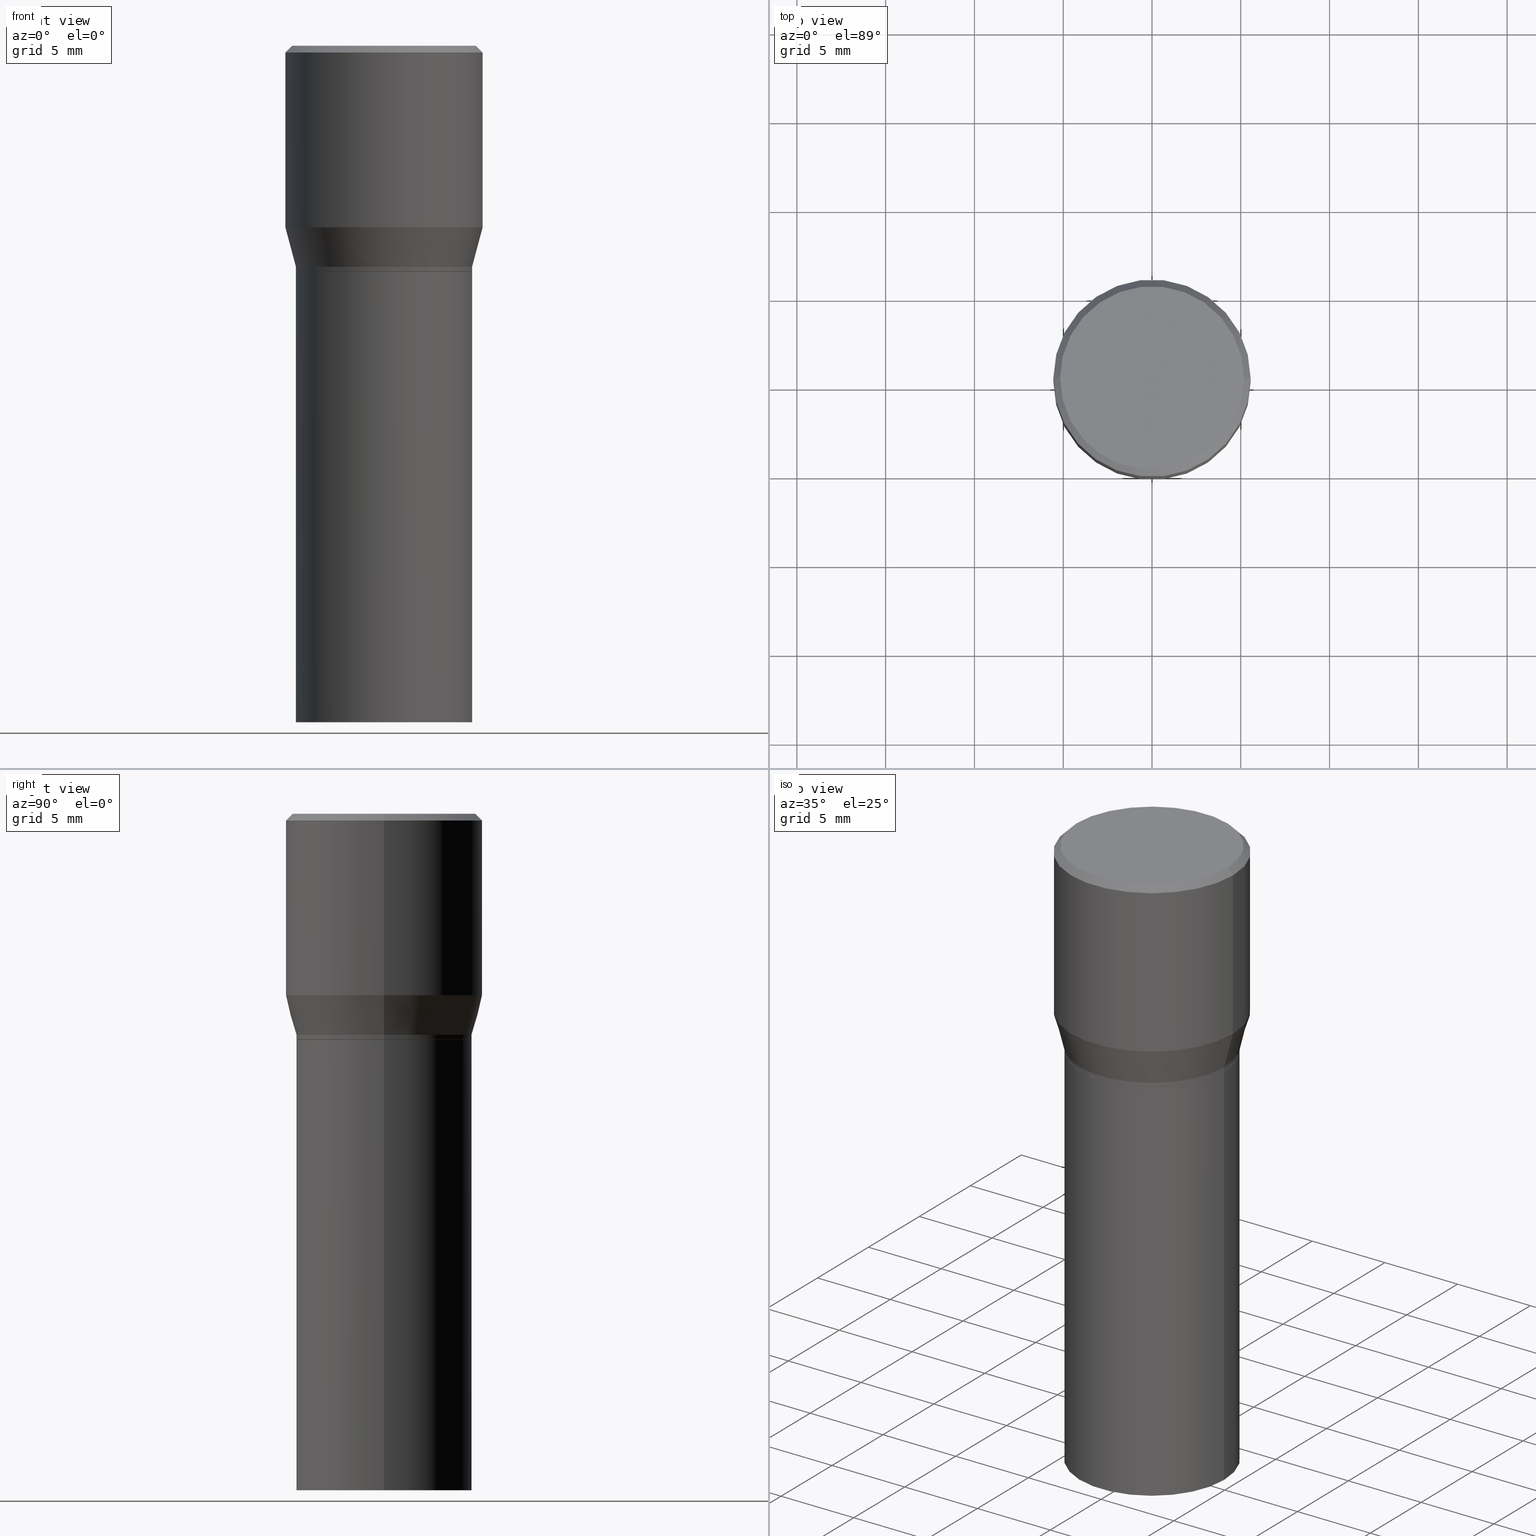
[diagram: canonical four-view strip — front | top / right | iso, engineering-drawing reading convention]
A machine part, canonical four-view strip (front | top / right | iso — engineering-drawing reading convention). The complete STEP part file that produces these views, byte-faithful:
ISO-10303-21;
HEADER;
FILE_DESCRIPTION (( 'STEP AP203' ),
    '1' );
FILE_NAME ('39349.STEP',
    '2024-03-12T18:59:48',
    ( '' ),
    ( '' ),
    'SwSTEP 2.0',
    'SolidWorks 2023',
    '' );
FILE_SCHEMA (( 'CONFIG_CONTROL_DESIGN' ));
ENDSEC;

DATA;
#1 = PERSON_AND_ORGANIZATION_ROLE ( 'design_owner' ) ;
#2 = SECURITY_CLASSIFICATION_LEVEL ( 'unclassified' ) ;
#3 = DIRECTION ( 'NONE',  ( -2.445468806185136597E-29, 3.491481338843145583E-15, 1.000000000000000000 ) ) ;
#4 = AXIS2_PLACEMENT_3D ( 'NONE', #460, #359, #283 ) ;
#5 = CARTESIAN_POINT ( 'NONE',  ( 1.198279715030717173E-29, -1.710825856033141537E-15, -0.4900000000000001021 ) ) ;
#6 = AXIS2_PLACEMENT_3D ( 'NONE', #427, #128, #246 ) ;
#7 =( LENGTH_UNIT ( ) NAMED_UNIT ( * ) SI_UNIT ( $, .METRE. ) );
#8 = DIRECTION ( 'NONE',  ( 1.000000000000000000, -6.982962677686265922E-15, 4.876176775795935793E-29 ) ) ;
#9 = CONICAL_SURFACE ( 'NONE', #393, 0.1948000000000000009, 0.7853981633974824739 ) ;
#10 = AXIS2_PLACEMENT_3D ( 'NONE', #437, #113, #290 ) ;
#11 = ORIENTED_EDGE ( 'NONE', *, *, #237, .F. ) ;
#12 = CARTESIAN_POINT ( 'NONE',  ( -2.592568563193567003E-45, 3.701500806376036554E-31, 1.060151966214568974E-16 ) ) ;
#13 = ORIENTED_EDGE ( 'NONE', *, *, #341, .T. ) ;
#14 = EDGE_LOOP ( 'NONE', ( #18, #13, #76, #123 ) ) ;
#15 = CARTESIAN_POINT ( 'NONE',  ( 1.221511668689476057E-29, -1.743994928752151682E-15, -0.4995000000000001661 ) ) ;
#16 = CARTESIAN_POINT ( 'NONE',  ( 0.1952999999999999736, -3.074598466985269231E-15, -0.4900000000000001021 ) ) ;
#17 = AXIS2_PLACEMENT_3D ( 'NONE', #25, #180, #69 ) ;
#18 = ORIENTED_EDGE ( 'NONE', *, *, #340, .T. ) ;
#19 = DIRECTION ( 'NONE',  ( 0.2588190451025214611, 1.565188264969621573E-15, 0.9659258262890682012 ) ) ;
#20 = VERTEX_POINT ( 'NONE', #156 ) ;
#21 = CALENDAR_DATE ( 2024, 12, 3 ) ;
#22 = CARTESIAN_POINT ( 'NONE',  ( 0.1953000000000000014, -3.107767539704279377E-15, -0.4995000000000001661 ) ) ;
#23 = ORIENTED_EDGE ( 'NONE', *, *, #289, .F. ) ;
#24 = CARTESIAN_POINT ( 'NONE',  ( 1.198279715030717173E-29, -1.710825856033141537E-15, -0.4900000000000001021 ) ) ;
#25 = CARTESIAN_POINT ( 'NONE',  ( 1.222734403092568719E-29, -1.745740669421573186E-15, -0.5000000000000001110 ) ) ;
#26 = CIRCLE ( 'NONE', #4, 0.1953000000000000014 ) ;
#27 = AXIS2_PLACEMENT_3D ( 'NONE', #92, #287, #239 ) ;
#28 = DIRECTION ( 'NONE',  ( 1.000000000000000000, -6.982962677686266711E-15, 4.875065411617369217E-29 ) ) ;
#29 = EDGE_CURVE ( 'NONE', #299, #229, #381, .T. ) ;
#30 = ADVANCED_BREP_SHAPE_REPRESENTATION ( '39349', ( #369, #195, #298 ), #292 ) ;
#31 = APPROVAL_DATE_TIME ( #210, #139 ) ;
#32 = DIRECTION ( 'NONE',  ( 1.000000000000000000, -6.982962677686266711E-15, 0.000000000000000000 ) ) ;
#33 = CARTESIAN_POINT ( 'NONE',  ( 0.000000000000000000, 0.000000000000000000, 0.000000000000000000 ) ) ;
#34 = PRODUCT_RELATED_PRODUCT_CATEGORY ( 'detail', '', ( #410 ) ) ;
#35 = ADVANCED_FACE ( 'NONE', ( #120 ), #418, .F. ) ;
#36 = DIRECTION ( 'NONE',  ( 1.000000000000000000, -6.982962677686269077E-15, 0.000000000000000000 ) ) ;
#37 = APPROVAL_PERSON_ORGANIZATION ( #163, #323, #127 ) ;
#38 = APPROVAL_STATUS ( 'not_yet_approved' ) ;
#39 = DIRECTION ( 'NONE',  ( 0.000000000000000000, 0.000000000000000000, 1.000000000000000000 ) ) ;
#40 = DIRECTION ( 'NONE',  ( 1.000000000000000000, -6.982962677686265922E-15, 0.000000000000000000 ) ) ;
#41 = CARTESIAN_POINT ( 'NONE',  ( -0.1953000000000000014, -3.563049658126762559E-16, -0.4995000000000001661 ) ) ;
#42 = ORIENTED_EDGE ( 'NONE', *, *, #162, .T. ) ;
#43 = CARTESIAN_POINT ( 'NONE',  ( -0.2187500000000000000, 1.475150865661223567E-15, -0.01499999999999999944 ) ) ;
#44 = VECTOR ( 'NONE', #455, 39.37007874015748143 ) ;
#45 = CIRCLE ( 'NONE', #141, 0.1953000000000000014 ) ;
#46 = EDGE_LOOP ( 'NONE', ( #116, #227 ) ) ;
#47 = FACE_OUTER_BOUND ( 'NONE', #411, .T. ) ;
#48 = CARTESIAN_POINT ( 'NONE',  ( 0.1948000000000000009, -3.106021799034858268E-15, -0.5000000000000001110 ) ) ;
#49 = ORIENTED_EDGE ( 'NONE', *, *, #280, .F. ) ;
#50 = CARTESIAN_POINT ( 'NONE',  ( 0.2187500000000000000, -1.553106157095169608E-15, -0.01499999999999999944 ) ) ;
#51 = ADVANCED_FACE ( 'NONE', ( #105 ), #322, .T. ) ;
#52 = ORIENTED_EDGE ( 'NONE', *, *, #202, .F. ) ;
#53 = DIRECTION ( 'NONE',  ( 1.000000000000000000, -6.982962677686266711E-15, 4.875065411617369217E-29 ) ) ;
#54 = EDGE_CURVE ( 'NONE', #268, #262, #26, .T. ) ;
#55 = ORIENTED_EDGE ( 'NONE', *, *, #213, .T. ) ;
#56 = CYLINDRICAL_SURFACE ( 'NONE', #140, 0.1952999999999999736 ) ;
#57 = CARTESIAN_POINT ( 'NONE',  ( 0.000000000000000000, 0.000000000000000000, 0.000000000000000000 ) ) ;
#58 = CYLINDRICAL_SURFACE ( 'NONE', #266, 0.1952999999999999736 ) ;
#59 = CIRCLE ( 'NONE', #448, 0.2037499999999999867 ) ;
#60 = LOCAL_TIME ( 14, 59, 48.00000000000000000, #294 ) ;
#61 = CARTESIAN_POINT ( 'NONE',  ( 1.422778645578576487E-15, 0.2037499999999999867, -6.583817244785623957E-16 ) ) ;
#62 = CARTESIAN_POINT ( 'NONE',  ( 0.000000000000000000, 0.000000000000000000, 0.000000000000000000 ) ) ;
#63 = DIRECTION ( 'NONE',  ( 2.445468806185136597E-29, -3.491481338843145583E-15, -1.000000000000000000 ) ) ;
#64 = DIRECTION ( 'NONE',  ( 1.000000000000000000, -6.982962677686267499E-15, 0.000000000000000000 ) ) ;
#65 = ADVANCED_FACE ( 'NONE', ( #431 ), #9, .T. ) ;
#66 = PERSON_AND_ORGANIZATION_ROLE ( 'design_supplier' ) ;
#67 = DIRECTION ( 'NONE',  ( 1.000000000000000000, -6.982962677686265922E-15, 4.876176775795935793E-29 ) ) ;
#68 = ADVANCED_FACE ( 'NONE', ( #212 ), #317, .T. ) ;
#69 = DIRECTION ( 'NONE',  ( 1.000000000000000000, -6.982962677686264344E-15, 0.000000000000000000 ) ) ;
#70 = PLANE ( 'NONE',  #325 ) ;
#71 = DIRECTION ( 'NONE',  ( 1.000000000000000000, 0.000000000000000000, 0.000000000000000000 ) ) ;
#72 = CIRCLE ( 'NONE', #150, 0.1953000000000000014 ) ;
#73 = UNCERTAINTY_MEASURE_WITH_UNIT (LENGTH_MEASURE( 1.000000000000000082E-05 ), #466, 'distance_accuracy_value', 'NONE');
#74 = DIRECTION ( 'NONE',  ( -2.445468806185136597E-29, 3.491481338843145583E-15, 1.000000000000000000 ) ) ;
#75 = PRODUCT_DEFINITION ( 'UNKNOWN', '', #236, #91 ) ;
#76 = ORIENTED_EDGE ( 'NONE', *, *, #355, .F. ) ;
#77 = CARTESIAN_POINT ( 'NONE',  ( 0.1953000000000000014, -1.363772610952127695E-15, 9.523173243129462177E-30 ) ) ;
#78 = EDGE_LOOP ( 'NONE', ( #421, #118, #454, #441 ) ) ;
#79 = DIRECTION ( 'NONE',  ( -2.445468806185136597E-29, 3.491481338843145583E-15, 1.000000000000000000 ) ) ;
#80 = VECTOR ( 'NONE', #19, 39.37007874015747433 ) ;
#81 = APPROVAL_PERSON_ORGANIZATION ( #254, #300, #179 ) ;
#82 = VERTEX_POINT ( 'NONE', #249 ) ;
#83 = CARTESIAN_POINT ( 'NONE',  ( -0.1953000000000000014, -2.103791375903670501E-15, -1.500000000000000222 ) ) ;
#84 = EDGE_LOOP ( 'NONE', ( #49, #165, #157, #159 ) ) ;
#85 = EDGE_CURVE ( 'NONE', #262, #268, #168, .T. ) ;
#86 = DIRECTION ( 'NONE',  ( 1.000000000000000000, -6.982962677686265922E-15, 0.000000000000000000 ) ) ;
#87 = VERTEX_POINT ( 'NONE', #442 ) ;
#88 = VERTEX_POINT ( 'NONE', #218 ) ;
#89 = CIRCLE ( 'NONE', #130, 0.2187500000000000000 ) ;
#90 = APPROVAL_PERSON_ORGANIZATION ( #108, #139, #402 ) ;
#91 = DESIGN_CONTEXT ( 'detailed design', #335, 'design' ) ;
#92 = CARTESIAN_POINT ( 'NONE',  ( 3.668203209277705088E-31, -5.237222008264718399E-17, -0.01499999999999999944 ) ) ;
#93 = PERSON_AND_ORGANIZATION ( #374, #440 ) ;
#94 = DIRECTION ( 'NONE',  ( -2.445468806185136877E-29, 3.491481338843145188E-15, 1.000000000000000000 ) ) ;
#95 = DIRECTION ( 'NONE',  ( -2.445468806185136597E-29, 3.491481338843145583E-15, 1.000000000000000000 ) ) ;
#96 = COORDINATED_UNIVERSAL_TIME_OFFSET ( 5, 0, .BEHIND. ) ;
#97 = DIRECTION ( 'NONE',  ( -1.000000000000000000, 6.982962677686266711E-15, 0.000000000000000000 ) ) ;
#98 = DIRECTION ( 'NONE',  ( 2.438088387897960049E-29, -3.491481338843145188E-15, -1.000000000000000000 ) ) ;
#99 = AXIS2_PLACEMENT_3D ( 'NONE', #61, #360, #170 ) ;
#100 = AXIS2_PLACEMENT_3D ( 'NONE', #329, #281, #32 ) ;
#101 = CC_DESIGN_PERSON_AND_ORGANIZATION_ASSIGNMENT ( #362, #66, ( #236 ) ) ;
#102 = CARTESIAN_POINT ( 'NONE',  ( -0.1948000000000000009, -3.616034201608981156E-16, -0.5000000000000001110 ) ) ;
#103 = CARTESIAN_POINT ( 'NONE',  ( 1.222734403092568719E-29, -1.745740669421573186E-15, -0.5000000000000001110 ) ) ;
#104 = CYLINDRICAL_SURFACE ( 'NONE', #401, 0.1953000000000000014 ) ;
#105 = FACE_OUTER_BOUND ( 'NONE', #409, .T. ) ;
#106 = DATE_AND_TIME ( #403, #394 ) ;
#107 = AXIS2_PLACEMENT_3D ( 'NONE', #293, #405, #258 ) ;
#108 = PERSON_AND_ORGANIZATION ( #374, #440 ) ;
#109 = CC_DESIGN_APPROVAL ( #139, ( #75 ) ) ;
#110 = ADVANCED_FACE ( 'NONE', ( #334 ), #70, .F. ) ;
#111 = ADVANCED_FACE ( 'NONE', ( #365 ), #413, .T. ) ;
#112 = PERSON_AND_ORGANIZATION ( #374, #440 ) ;
#113 = DIRECTION ( 'NONE',  ( -2.438088387897960049E-29, 3.491481338843145188E-15, 1.000000000000000000 ) ) ;
#114 = ORIENTED_EDGE ( 'NONE', *, *, #202, .T. ) ;
#115 = ORIENTED_EDGE ( 'NONE', *, *, #340, .F. ) ;
#116 = ORIENTED_EDGE ( 'NONE', *, *, #327, .F. ) ;
#117 = EDGE_LOOP ( 'NONE', ( #272, #42, #314, #347 ) ) ;
#118 = ORIENTED_EDGE ( 'NONE', *, *, #223, .T. ) ;
#119 = DIRECTION ( 'NONE',  ( 1.000000000000000000, -6.982962677686265922E-15, 0.000000000000000000 ) ) ;
#120 = FACE_OUTER_BOUND ( 'NONE', #446, .T. ) ;
#121 = ORIENTED_EDGE ( 'NONE', *, *, #407, .T. ) ;
#122 = DIRECTION ( 'NONE',  ( 1.000000000000000000, -6.982962677686267499E-15, 0.000000000000000000 ) ) ;
#123 = ORIENTED_EDGE ( 'NONE', *, *, #29, .F. ) ;
#124 = ORIENTED_EDGE ( 'NONE', *, *, #208, .T. ) ;
#125 = DIRECTION ( 'NONE',  ( -2.445468806185136597E-29, 3.491481338843145583E-15, 1.000000000000000000 ) ) ;
#126 = ORIENTED_EDGE ( 'NONE', *, *, #216, .T. ) ;
#127 = APPROVAL_ROLE ( '' ) ;
#128 = DIRECTION ( 'NONE',  ( -2.445468806185136597E-29, 3.491481338843145583E-15, 1.000000000000000000 ) ) ;
#129 = ADVANCED_FACE ( 'NONE', ( #368 ), #275, .T. ) ;
#130 = AXIS2_PLACEMENT_3D ( 'NONE', #160, #422, #313 ) ;
#131 = CARTESIAN_POINT ( 'NONE',  ( 0.2187500000000000000, -1.527523085743870843E-15, 1.066663669705360885E-29 ) ) ;
#132 = DIRECTION ( 'NONE',  ( 1.000000000000000000, -6.982962677686267499E-15, 0.000000000000000000 ) ) ;
#133 = CARTESIAN_POINT ( 'NONE',  ( 3.668203209277704895E-29, -5.237222008264718177E-15, -1.500000000000000222 ) ) ;
#134 = CC_DESIGN_APPROVAL ( #300, ( #276 ) ) ;
#135 = DIRECTION ( 'NONE',  ( -2.445468806185136597E-29, 3.491481338843145583E-15, 1.000000000000000000 ) ) ;
#136 = DIRECTION ( 'NONE',  ( -2.445468806185136597E-29, 3.491481338843145583E-15, 1.000000000000000000 ) ) ;
#137 = APPLICATION_PROTOCOL_DEFINITION ( 'international standard', 'config_control_design', 1994, #308 ) ;
#138 = PERSON_AND_ORGANIZATION ( #374, #440 ) ;
#139 = APPROVAL ( #38, 'UNSPECIFIED' ) ;
#140 = AXIS2_PLACEMENT_3D ( 'NONE', #194, #230, #200 ) ;
#141 = AXIS2_PLACEMENT_3D ( 'NONE', #133, #363, #36 ) ;
#142 = APPLICATION_PROTOCOL_DEFINITION ( 'international standard', 'config_control_design', 1994, #335 ) ;
#143 = APPROVAL_DATE_TIME ( #398, #300 ) ;
#144 = EDGE_LOOP ( 'NONE', ( #114, #412 ) ) ;
#145 = CARTESIAN_POINT ( 'NONE',  ( 0.1952999999999999736, -1.363772610952127497E-15, 9.523173243129459375E-30 ) ) ;
#146 = EDGE_CURVE ( 'NONE', #229, #87, #184, .T. ) ;
#147 = CARTESIAN_POINT ( 'NONE',  ( 0.000000000000000000, 0.000000000000000000, 0.000000000000000000 ) ) ;
#148 = ORIENTED_EDGE ( 'NONE', *, *, #213, .F. ) ;
#149 = CIRCLE ( 'NONE', #400, 0.2037499999999999867 ) ;
#150 = AXIS2_PLACEMENT_3D ( 'NONE', #395, #135, #204 ) ;
#151 = VERTEX_POINT ( 'NONE', #338 ) ;
#152 = LINE ( 'NONE', #16, #80 ) ;
#153 = ORIENTED_EDGE ( 'NONE', *, *, #85, .T. ) ;
#154 = ORIENTED_EDGE ( 'NONE', *, *, #407, .F. ) ;
#155 = LINE ( 'NONE', #348, #423 ) ;
#156 = CARTESIAN_POINT ( 'NONE',  ( 0.2187500000000000000, -1.579895305826517922E-15, -0.01499999999999999944 ) ) ;
#157 = ORIENTED_EDGE ( 'NONE', *, *, #333, .T. ) ;
#158 = CLOSED_SHELL ( 'NONE', ( #226, #65, #372, #51, #111, #129, #373, #366, #301, #462, #68, #436 ) ) ;
#159 = ORIENTED_EDGE ( 'NONE', *, *, #216, .F. ) ;
#160 = CARTESIAN_POINT ( 'NONE',  ( 9.842606206466859638E-30, -1.405263310189985589E-15, -0.4024834085625100810 ) ) ;
#161 = ORIENTED_EDGE ( 'NONE', *, *, #85, .F. ) ;
#162 = EDGE_CURVE ( 'NONE', #82, #88, #295, .T. ) ;
#163 = PERSON_AND_ORGANIZATION ( #374, #440 ) ;
#164 = DIRECTION ( 'NONE',  ( -0.7071067811865452413, 2.468850131082233000E-15, -0.7071067811865497932 ) ) ;
#165 = ORIENTED_EDGE ( 'NONE', *, *, #237, .T. ) ;
#166 = CALENDAR_DATE ( 2024, 12, 3 ) ;
#167 = FACE_OUTER_BOUND ( 'NONE', #350, .T. ) ;
#168 = CIRCLE ( 'NONE', #17, 0.1953000000000000014 ) ;
#169 = LOCAL_TIME ( 14, 59, 48.00000000000000000, #96 ) ;
#170 = DIRECTION ( 'NONE',  ( -1.000000000000000000, 6.982962677686265922E-15, -4.876176775795935793E-29 ) ) ;
#171 = FACE_OUTER_BOUND ( 'NONE', #353, .T. ) ;
#172 = DIRECTION ( 'NONE',  ( -2.445468806185136597E-29, 3.491481338843145583E-15, 1.000000000000000000 ) ) ;
#173 = CARTESIAN_POINT ( 'NONE',  ( 1.222734403092568719E-29, -1.745740669421573186E-15, -0.5000000000000001110 ) ) ;
#174 = CIRCLE ( 'NONE', #6, 0.1953000000000000014 ) ;
#175 = EDGE_CURVE ( 'NONE', #302, #20, #349, .T. ) ;
#176 = DIRECTION ( 'NONE',  ( 1.000000000000000000, -6.982962677686265922E-15, 0.000000000000000000 ) ) ;
#177 = EDGE_CURVE ( 'NONE', #88, #302, #155, .T. ) ;
#178 = CARTESIAN_POINT ( 'NONE',  ( 0.000000000000000000, 0.000000000000000000, 0.000000000000000000 ) ) ;
#179 = APPROVAL_ROLE ( '' ) ;
#180 = DIRECTION ( 'NONE',  ( -2.445468806185136597E-29, 3.491481338843145583E-15, 1.000000000000000000 ) ) ;
#181 = EDGE_CURVE ( 'NONE', #190, #299, #385, .T. ) ;
#182 = AXIS2_PLACEMENT_3D ( 'NONE', #15, #125, #119 ) ;
#183 = VECTOR ( 'NONE', #277, 39.37007874015748143 ) ;
#184 = LINE ( 'NONE', #145, #291 ) ;
#185 = LENGTH_MEASURE_WITH_UNIT ( LENGTH_MEASURE( 0.02539999999999999897 ), #7 );
#186 = CARTESIAN_POINT ( 'NONE',  ( 3.668203209277705088E-31, -5.237222008264718399E-17, -0.01499999999999999944 ) ) ;
#187 = ORIENTED_EDGE ( 'NONE', *, *, #261, .T. ) ;
#188 = VECTOR ( 'NONE', #164, 39.37007874015748143 ) ;
#189 = LINE ( 'NONE', #343, #265 ) ;
#190 = VERTEX_POINT ( 'NONE', #447 ) ;
#191 = EDGE_CURVE ( 'NONE', #87, #151, #152, .T. ) ;
#192 = EDGE_LOOP ( 'NONE', ( #240, #124, #233, #148 ) ) ;
#193 = CC_DESIGN_DATE_AND_TIME_ASSIGNMENT ( #106, #399, ( #276 ) ) ;
#194 = CARTESIAN_POINT ( 'NONE',  ( 0.000000000000000000, 0.000000000000000000, 0.000000000000000000 ) ) ;
#195 = MANIFOLD_SOLID_BREP ( 'Body-Move/Copy2[2]', #158 ) ;
#196 = ORIENTED_EDGE ( 'NONE', *, *, #328, .T. ) ;
#197 = ORIENTED_EDGE ( 'NONE', *, *, #177, .T. ) ;
#198 = LOCAL_TIME ( 14, 59, 48.00000000000000000, #241 ) ;
#199 = VERTEX_POINT ( 'NONE', #83 ) ;
#200 = DIRECTION ( 'NONE',  ( 1.000000000000000000, -6.982962677686265922E-15, 4.876176775795934672E-29 ) ) ;
#201 = ORIENTED_EDGE ( 'NONE', *, *, #346, .T. ) ;
#202 = EDGE_CURVE ( 'NONE', #416, #450, #149, .T. ) ;
#203 = APPROVAL_STATUS ( 'not_yet_approved' ) ;
#204 = DIRECTION ( 'NONE',  ( 1.000000000000000000, -6.982962677686265922E-15, 0.000000000000000000 ) ) ;
#205 = FACE_OUTER_BOUND ( 'NONE', #351, .T. ) ;
#206 = DIRECTION ( 'NONE',  ( 1.000000000000000000, -6.982962677686266711E-15, 4.876176775795935232E-29 ) ) ;
#207 = AXIS2_PLACEMENT_3D ( 'NONE', #417, #352, #122 ) ;
#208 = EDGE_CURVE ( 'NONE', #82, #87, #461, .T. ) ;
#209 = LINE ( 'NONE', #131, #183 ) ;
#210 = DATE_AND_TIME ( #166, #60 ) ;
#211 = CYLINDRICAL_SURFACE ( 'NONE', #257, 0.1953000000000000014 ) ;
#212 = FACE_OUTER_BOUND ( 'NONE', #270, .T. ) ;
#213 = EDGE_CURVE ( 'NONE', #88, #151, #89, .T. ) ;
#214 = CARTESIAN_POINT ( 'NONE',  ( 0.1953000000000000014, -6.600994619216846463E-15, -1.500000000000000222 ) ) ;
#215 = AXIS2_PLACEMENT_3D ( 'NONE', #420, #267, #86 ) ;
#216 = EDGE_CURVE ( 'NONE', #416, #302, #453, .T. ) ;
#217 =( NAMED_UNIT ( * ) SI_UNIT ( $, .STERADIAN. ) SOLID_ANGLE_UNIT ( ) );
#218 = CARTESIAN_POINT ( 'NONE',  ( -0.2187500000000000000, 1.490489242852337896E-16, -0.4024834085625100810 ) ) ;
#219 = DIRECTION ( 'NONE',  ( 1.000000000000000000, -6.982962677686265922E-15, 4.876176775795934672E-29 ) ) ;
#220 = AXIS2_PLACEMENT_3D ( 'NONE', #62, #433, #206 ) ;
#221 = CIRCLE ( 'NONE', #100, 0.2187500000000000000 ) ;
#222 = CARTESIAN_POINT ( 'NONE',  ( 3.576687321579069994E-29, -5.368277968210015545E-15, -1.500000000000000222 ) ) ;
#223 = EDGE_CURVE ( 'NONE', #451, #229, #456, .T. ) ;
#224 = ORIENTED_EDGE ( 'NONE', *, *, #177, .F. ) ;
#225 = DIRECTION ( 'NONE',  ( -2.445468806185136877E-29, 3.491481338843145188E-15, 1.000000000000000000 ) ) ;
#226 = ADVANCED_FACE ( 'NONE', ( #47 ), #56, .T. ) ;
#227 = ORIENTED_EDGE ( 'NONE', *, *, #346, .F. ) ;
#228 = AXIS2_PLACEMENT_3D ( 'NONE', #389, #63, #97 ) ;
#229 = VERTEX_POINT ( 'NONE', #22 ) ;
#230 = DIRECTION ( 'NONE',  ( -2.445468806185136597E-29, 3.491481338843145583E-15, 1.000000000000000000 ) ) ;
#231 = ORIENTED_EDGE ( 'NONE', *, *, #341, .F. ) ;
#232 = CC_DESIGN_PERSON_AND_ORGANIZATION_ASSIGNMENT ( #288, #331, ( #236 ) ) ;
#233 = ORIENTED_EDGE ( 'NONE', *, *, #191, .T. ) ;
#234 = ORIENTED_EDGE ( 'NONE', *, *, #327, .T. ) ;
#235 = VECTOR ( 'NONE', #309, 39.37007874015748854 ) ;
#236 = PRODUCT_DEFINITION_FORMATION_WITH_SPECIFIED_SOURCE ( 'ANY', '', #410, .NOT_KNOWN. ) ;
#237 = EDGE_CURVE ( 'NONE', #450, #20, #315, .T. ) ;
#238 = DIMENSIONAL_EXPONENTS ( 1.000000000000000000, 0.000000000000000000, 0.000000000000000000, 0.000000000000000000, 0.000000000000000000, 0.000000000000000000, 0.000000000000000000 ) ;
#239 = DIRECTION ( 'NONE',  ( -1.000000000000000000, 6.982962677686266711E-15, 0.000000000000000000 ) ) ;
#240 = ORIENTED_EDGE ( 'NONE', *, *, #162, .F. ) ;
#241 = COORDINATED_UNIVERSAL_TIME_OFFSET ( 5, 0, .BEHIND. ) ;
#242 = FACE_OUTER_BOUND ( 'NONE', #78, .T. ) ;
#243 = FACE_OUTER_BOUND ( 'NONE', #84, .T. ) ;
#244 = ORIENTED_EDGE ( 'NONE', *, *, #263, .T. ) ;
#245 = CIRCLE ( 'NONE', #311, 0.1952999999999999736 ) ;
#246 = DIRECTION ( 'NONE',  ( 1.000000000000000000, -6.982962677686269077E-15, 0.000000000000000000 ) ) ;
#247 = DIRECTION ( 'NONE',  ( -2.445468806185136597E-29, 3.491481338843145583E-15, 1.000000000000000000 ) ) ;
#248 = APPROVAL_STATUS ( 'not_yet_approved' ) ;
#249 = CARTESIAN_POINT ( 'NONE',  ( -0.1952999999999999736, -8.704348440421619739E-17, -0.4900000000000001021 ) ) ;
#250 = CC_DESIGN_PERSON_AND_ORGANIZATION_ASSIGNMENT ( #138, #252, ( #276 ) ) ;
#251 = APPROVAL_DATE_TIME ( #273, #323 ) ;
#252 = PERSON_AND_ORGANIZATION_ROLE ( 'classification_officer' ) ;
#253 = FACE_OUTER_BOUND ( 'NONE', #312, .T. ) ;
#254 = PERSON_AND_ORGANIZATION ( #374, #440 ) ;
#255 = COORDINATED_UNIVERSAL_TIME_OFFSET ( 5, 0, .BEHIND. ) ;
#256 = DIRECTION ( 'NONE',  ( -0.2588190451025214611, 5.211531920934551042E-15, 0.9659258262890682012 ) ) ;
#257 = AXIS2_PLACEMENT_3D ( 'NONE', #33, #316, #457 ) ;
#258 = DIRECTION ( 'NONE',  ( 1.000000000000000000, -6.982962677686265922E-15, 0.000000000000000000 ) ) ;
#259 = EDGE_LOOP ( 'NONE', ( #11, #52, #126, #419 ) ) ;
#260 = LINE ( 'NONE', #77, #377 ) ;
#261 = EDGE_CURVE ( 'NONE', #342, #268, #260, .T. ) ;
#262 = VERTEX_POINT ( 'NONE', #376 ) ;
#263 = EDGE_CURVE ( 'NONE', #451, #82, #189, .T. ) ;
#264 = ORIENTED_EDGE ( 'NONE', *, *, #333, .F. ) ;
#265 = VECTOR ( 'NONE', #303, 39.37007874015748143 ) ;
#266 = AXIS2_PLACEMENT_3D ( 'NONE', #178, #136, #219 ) ;
#267 = DIRECTION ( 'NONE',  ( -2.445468806185136597E-29, 3.491481338843145583E-15, 1.000000000000000000 ) ) ;
#268 = VERTEX_POINT ( 'NONE', #444 ) ;
#269 = ORIENTED_EDGE ( 'NONE', *, *, #175, .F. ) ;
#270 = EDGE_LOOP ( 'NONE', ( #231, #390, #443, #382 ) ) ;
#271 = DATE_TIME_ROLE ( 'creation_date' ) ;
#272 = ORIENTED_EDGE ( 'NONE', *, *, #289, .T. ) ;
#273 = DATE_AND_TIME ( #356, #198 ) ;
#274 = CARTESIAN_POINT ( 'NONE',  ( -2.592568563193567003E-45, 3.701500806376036554E-31, 1.060151966214568974E-16 ) ) ;
#275 = CONICAL_SURFACE ( 'NONE', #107, 0.1952999999999999736, 0.2617993877991501295 ) ;
#276 = SECURITY_CLASSIFICATION ( '', '', #2 ) ;
#277 = DIRECTION ( 'NONE',  ( -2.445468806185136877E-29, 3.491481338843145188E-15, 1.000000000000000000 ) ) ;
#278 = CC_DESIGN_PERSON_AND_ORGANIZATION_ASSIGNMENT ( #112, #1, ( #410 ) ) ;
#279 = LINE ( 'NONE', #102, #464 ) ;
#280 = EDGE_CURVE ( 'NONE', #450, #416, #59, .T. ) ;
#281 = DIRECTION ( 'NONE',  ( -2.445468806185136597E-29, 3.491481338843145583E-15, 1.000000000000000000 ) ) ;
#282 = AXIS2_PLACEMENT_3D ( 'NONE', #5, #3, #40 ) ;
#283 = DIRECTION ( 'NONE',  ( 1.000000000000000000, -6.982962677686264344E-15, 0.000000000000000000 ) ) ;
#284 = CIRCLE ( 'NONE', #318, 0.2187500000000000000 ) ;
#285 = AXIS2_PLACEMENT_3D ( 'NONE', #57, #354, #321 ) ;
#286 = CC_DESIGN_DATE_AND_TIME_ASSIGNMENT ( #452, #271, ( #75 ) ) ;
#287 = DIRECTION ( 'NONE',  ( 2.445468806185136597E-29, -3.491481338843145583E-15, -1.000000000000000000 ) ) ;
#288 = PERSON_AND_ORGANIZATION ( #374, #440 ) ;
#289 = EDGE_CURVE ( 'NONE', #87, #82, #245, .T. ) ;
#290 = DIRECTION ( 'NONE',  ( 1.000000000000000000, -6.982962677686265922E-15, 4.876176775795935793E-29 ) ) ;
#291 = VECTOR ( 'NONE', #408, 39.37007874015748143 ) ;
#292 =( GEOMETRIC_REPRESENTATION_CONTEXT ( 3 ) GLOBAL_UNCERTAINTY_ASSIGNED_CONTEXT ( ( #73 ) ) GLOBAL_UNIT_ASSIGNED_CONTEXT ( ( #466, #435, #217 ) ) REPRESENTATION_CONTEXT ( 'NONE', 'WORKASPACE' ) );
#293 = CARTESIAN_POINT ( 'NONE',  ( 1.198279715030717173E-29, -1.710825856033141537E-15, -0.4900000000000001021 ) ) ;
#294 = COORDINATED_UNIVERSAL_TIME_OFFSET ( 5, 0, .BEHIND. ) ;
#295 = LINE ( 'NONE', #438, #439 ) ;
#296 = CALENDAR_DATE ( 2024, 12, 3 ) ;
#297 = AXIS2_PLACEMENT_3D ( 'NONE', #186, #380, #345 ) ;
#298 = AXIS2_PLACEMENT_3D ( 'NONE', #147, #39, #71 ) ;
#299 = VERTEX_POINT ( 'NONE', #428 ) ;
#300 = APPROVAL ( #248, 'UNSPECIFIED' ) ;
#301 = ADVANCED_FACE ( 'NONE', ( #463 ), #459, .F. ) ;
#302 = VERTEX_POINT ( 'NONE', #357 ) ;
#303 = DIRECTION ( 'NONE',  ( -2.445468806185136877E-29, 3.491481338843145188E-15, 1.000000000000000000 ) ) ;
#304 = ORIENTED_EDGE ( 'NONE', *, *, #445, .T. ) ;
#305 = ORIENTED_EDGE ( 'NONE', *, *, #54, .F. ) ;
#306 = DIRECTION ( 'NONE',  ( -2.445468806185136877E-29, 3.491481338843145188E-15, 1.000000000000000000 ) ) ;
#307 = PRODUCT_DEFINITION_SHAPE ( 'NONE', 'NONE',  #75 ) ;
#308 = APPLICATION_CONTEXT ( 'configuration controlled 3d designs of mechanical parts and assemblies' ) ;
#309 = DIRECTION ( 'NONE',  ( 0.7071067811865715536, -2.468850131082509496E-15, 0.7071067811865232589 ) ) ;
#310 = ORIENTED_EDGE ( 'NONE', *, *, #328, .F. ) ;
#311 = AXIS2_PLACEMENT_3D ( 'NONE', #24, #324, #176 ) ;
#312 = EDGE_LOOP ( 'NONE', ( #115, #375 ) ) ;
#313 = DIRECTION ( 'NONE',  ( 1.000000000000000000, -6.982962677686266711E-15, 0.000000000000000000 ) ) ;
#314 = ORIENTED_EDGE ( 'NONE', *, *, #445, .F. ) ;
#315 = LINE ( 'NONE', #50, #44 ) ;
#316 = DIRECTION ( 'NONE',  ( -2.445468806185136597E-29, 3.491481338843145583E-15, 1.000000000000000000 ) ) ;
#317 = CONICAL_SURFACE ( 'NONE', #429, 0.1948000000000000009, 0.7853981633974824739 ) ;
#318 = AXIS2_PLACEMENT_3D ( 'NONE', #339, #74, #337 ) ;
#319 = CARTESIAN_POINT ( 'NONE',  ( 1.222734403092568719E-29, -1.745740669421573186E-15, -0.5000000000000001110 ) ) ;
#320 = PERSON_AND_ORGANIZATION_ROLE ( 'creator' ) ;
#321 = DIRECTION ( 'NONE',  ( 1.000000000000000000, -6.982962677686266711E-15, 4.876176775795935232E-29 ) ) ;
#322 = CYLINDRICAL_SURFACE ( 'NONE', #220, 0.2187500000000000000 ) ;
#323 = APPROVAL ( #203, 'UNSPECIFIED' ) ;
#324 = DIRECTION ( 'NONE',  ( -2.445468806185136597E-29, 3.491481338843145583E-15, 1.000000000000000000 ) ) ;
#325 = AXIS2_PLACEMENT_3D ( 'NONE', #222, #371, #8 ) ;
#326 = DIRECTION ( 'NONE',  ( -2.445468806185136597E-29, 3.491481338843145583E-15, 1.000000000000000000 ) ) ;
#327 = EDGE_CURVE ( 'NONE', #342, #199, #45, .T. ) ;
#328 = EDGE_CURVE ( 'NONE', #199, #262, #432, .T. ) ;
#329 = CARTESIAN_POINT ( 'NONE',  ( 3.668203209277705088E-31, -5.237222008264718399E-17, -0.01499999999999999944 ) ) ;
#330 = COORDINATED_UNIVERSAL_TIME_OFFSET ( 5, 0, .BEHIND. ) ;
#331 = PERSON_AND_ORGANIZATION_ROLE ( 'creator' ) ;
#332 = MECHANICAL_CONTEXT ( 'NONE', #308, 'mechanical' ) ;
#333 = EDGE_CURVE ( 'NONE', #20, #302, #221, .T. ) ;
#334 = FACE_OUTER_BOUND ( 'NONE', #46, .T. ) ;
#335 = APPLICATION_CONTEXT ( 'configuration controlled 3d designs of mechanical parts and assemblies' ) ;
#336 = CC_DESIGN_APPROVAL ( #323, ( #236 ) ) ;
#337 = DIRECTION ( 'NONE',  ( 1.000000000000000000, -6.982962677686266711E-15, 0.000000000000000000 ) ) ;
#338 = CARTESIAN_POINT ( 'NONE',  ( 0.2187500000000000000, -2.932786395933856235E-15, -0.4024834085625100810 ) ) ;
#339 = CARTESIAN_POINT ( 'NONE',  ( 9.842606206466859638E-30, -1.405263310189985589E-15, -0.4024834085625100810 ) ) ;
#340 = EDGE_CURVE ( 'NONE', #299, #190, #378, .T. ) ;
#341 = EDGE_CURVE ( 'NONE', #190, #451, #279, .T. ) ;
#342 = VERTEX_POINT ( 'NONE', #214 ) ;
#343 = CARTESIAN_POINT ( 'NONE',  ( -0.1952999999999999736, 1.387689962939475476E-15, -9.606680231267830396E-30 ) ) ;
#344 = ORIENTED_EDGE ( 'NONE', *, *, #146, .F. ) ;
#345 = DIRECTION ( 'NONE',  ( 1.000000000000000000, -6.982962677686266711E-15, 0.000000000000000000 ) ) ;
#346 = EDGE_CURVE ( 'NONE', #199, #342, #174, .T. ) ;
#347 = ORIENTED_EDGE ( 'NONE', *, *, #191, .F. ) ;
#348 = CARTESIAN_POINT ( 'NONE',  ( -0.2187500000000000000, 1.554312234475219157E-15, -1.076017050993260622E-29 ) ) ;
#349 = CIRCLE ( 'NONE', #297, 0.2187500000000000000 ) ;
#350 = EDGE_LOOP ( 'NONE', ( #234, #196, #305, #383 ) ) ;
#351 = EDGE_LOOP ( 'NONE', ( #310, #201, #187, #161 ) ) ;
#352 = DIRECTION ( 'NONE',  ( -2.445468806185136597E-29, 3.491481338843145583E-15, 1.000000000000000000 ) ) ;
#353 = EDGE_LOOP ( 'NONE', ( #224, #55, #121, #269 ) ) ;
#354 = DIRECTION ( 'NONE',  ( -2.445468806185136597E-29, 3.491481338843145583E-15, 1.000000000000000000 ) ) ;
#355 = EDGE_CURVE ( 'NONE', #229, #451, #72, .T. ) ;
#356 = CALENDAR_DATE ( 2024, 12, 3 ) ;
#357 = CARTESIAN_POINT ( 'NONE',  ( -0.2187500000000000000, 8.254944693389027239E-16, -0.01499999999999999944 ) ) ;
#358 = AXIS2_PLACEMENT_3D ( 'NONE', #319, #458, #132 ) ;
#359 = DIRECTION ( 'NONE',  ( -2.445468806185136597E-29, 3.491481338843145583E-15, 1.000000000000000000 ) ) ;
#360 = DIRECTION ( 'NONE',  ( 2.438088387897960049E-29, -3.491481338843145188E-15, -1.000000000000000000 ) ) ;
#361 = CYLINDRICAL_SURFACE ( 'NONE', #285, 0.2187500000000000000 ) ;
#362 = PERSON_AND_ORGANIZATION ( #374, #440 ) ;
#363 = DIRECTION ( 'NONE',  ( -2.445468806185136597E-29, 3.491481338843145583E-15, 1.000000000000000000 ) ) ;
#364 = LOCAL_TIME ( 14, 59, 48.00000000000000000, #255 ) ;
#365 = FACE_OUTER_BOUND ( 'NONE', #117, .T. ) ;
#366 = ADVANCED_FACE ( 'NONE', ( #424 ), #415, .T. ) ;
#367 = SHAPE_DEFINITION_REPRESENTATION ( #307, #30 ) ;
#368 = FACE_OUTER_BOUND ( 'NONE', #192, .T. ) ;
#369 = MANIFOLD_SOLID_BREP ( 'Body-Move/Copy2[1]', #370 ) ;
#370 = CLOSED_SHELL ( 'NONE', ( #384, #110, #388, #35 ) ) ;
#371 = DIRECTION ( 'NONE',  ( -2.438088387897960049E-29, 3.491481338843145188E-15, 1.000000000000000000 ) ) ;
#372 = ADVANCED_FACE ( 'NONE', ( #243 ), #430, .T. ) ;
#373 = ADVANCED_FACE ( 'NONE', ( #171 ), #361, .T. ) ;
#374 = PERSON ( 'UNSPECIFIED', 'UNSPECIFIED', 'UNSPECIFIED', ('UNSPECIFIED'), ('UNSPECIFIED'), ('UNSPECIFIED') ) ;
#375 = ORIENTED_EDGE ( 'NONE', *, *, #181, .F. ) ;
#376 = CARTESIAN_POINT ( 'NONE',  ( -0.1953000000000000014, -2.103791375903670501E-15, -0.5000000000000001110 ) ) ;
#377 = VECTOR ( 'NONE', #225, 39.37007874015748143 ) ;
#378 = CIRCLE ( 'NONE', #358, 0.1948000000000000009 ) ;
#379 = ORIENTED_EDGE ( 'NONE', *, *, #54, .T. ) ;
#380 = DIRECTION ( 'NONE',  ( -2.445468806185136597E-29, 3.491481338843145583E-15, 1.000000000000000000 ) ) ;
#381 = LINE ( 'NONE', #48, #235 ) ;
#382 = ORIENTED_EDGE ( 'NONE', *, *, #223, .F. ) ;
#383 = ORIENTED_EDGE ( 'NONE', *, *, #261, .F. ) ;
#384 = ADVANCED_FACE ( 'NONE', ( #167 ), #211, .T. ) ;
#385 = CIRCLE ( 'NONE', #207, 0.1948000000000000009 ) ;
#386 = ORIENTED_EDGE ( 'NONE', *, *, #355, .T. ) ;
#387 = VECTOR ( 'NONE', #94, 39.37007874015748143 ) ;
#388 = ADVANCED_FACE ( 'NONE', ( #205 ), #104, .T. ) ;
#389 = CARTESIAN_POINT ( 'NONE',  ( 3.668203209277705088E-31, -5.237222008264718399E-17, -0.01499999999999999944 ) ) ;
#390 = ORIENTED_EDGE ( 'NONE', *, *, #181, .T. ) ;
#391 = DIRECTION ( 'NONE',  ( -0.7071067811865715536, 7.493145998870439357E-15, 0.7071067811865232589 ) ) ;
#392 = CARTESIAN_POINT ( 'NONE',  ( 0.000000000000000000, 0.000000000000000000, 0.000000000000000000 ) ) ;
#393 = AXIS2_PLACEMENT_3D ( 'NONE', #103, #95, #64 ) ;
#394 = LOCAL_TIME ( 14, 59, 48.00000000000000000, #330 ) ;
#395 = CARTESIAN_POINT ( 'NONE',  ( 1.221511668689476057E-29, -1.743994928752151682E-15, -0.4995000000000001661 ) ) ;
#396 = DIRECTION ( 'NONE',  ( -1.000000000000000000, 6.982962677686265922E-15, -4.876176775795935793E-29 ) ) ;
#397 = CARTESIAN_POINT ( 'NONE',  ( -0.1953000000000000014, 1.387689962939475673E-15, -9.606680231267831797E-30 ) ) ;
#398 = DATE_AND_TIME ( #296, #364 ) ;
#399 = DATE_TIME_ROLE ( 'classification_date' ) ;
#400 = AXIS2_PLACEMENT_3D ( 'NONE', #12, #79, #53 ) ;
#401 = AXIS2_PLACEMENT_3D ( 'NONE', #392, #172, #67 ) ;
#402 = APPROVAL_ROLE ( '' ) ;
#403 = CALENDAR_DATE ( 2024, 12, 3 ) ;
#404 = CARTESIAN_POINT ( 'NONE',  ( 0.2037499999999999867, -1.475466312070559275E-15, 1.060151966214670170E-16 ) ) ;
#405 = DIRECTION ( 'NONE',  ( -2.445468806185136597E-29, 3.491481338843145583E-15, 1.000000000000000000 ) ) ;
#406 = PLANE ( 'NONE',  #10 ) ;
#407 = EDGE_CURVE ( 'NONE', #151, #20, #209, .T. ) ;
#408 = DIRECTION ( 'NONE',  ( -2.445468806185136877E-29, 3.491481338843145188E-15, 1.000000000000000000 ) ) ;
#409 = EDGE_LOOP ( 'NONE', ( #304, #197, #264, #154 ) ) ;
#410 = PRODUCT ( '39349', '39349', '', ( #332 ) ) ;
#411 = EDGE_LOOP ( 'NONE', ( #386, #244, #23, #344 ) ) ;
#412 = ORIENTED_EDGE ( 'NONE', *, *, #280, .T. ) ;
#413 = CONICAL_SURFACE ( 'NONE', #282, 0.1952999999999999736, 0.2617993877991501295 ) ;
#414 = CC_DESIGN_PERSON_AND_ORGANIZATION_ASSIGNMENT ( #93, #320, ( #75 ) ) ;
#415 = CONICAL_SURFACE ( 'NONE', #27, 0.2187500000000000000, 0.7853981633974450594 ) ;
#416 = VERTEX_POINT ( 'NONE', #425 ) ;
#417 = CARTESIAN_POINT ( 'NONE',  ( 1.222734403092568719E-29, -1.745740669421573186E-15, -0.5000000000000001110 ) ) ;
#418 = PLANE ( 'NONE',  #434 ) ;
#419 = ORIENTED_EDGE ( 'NONE', *, *, #175, .T. ) ;
#420 = CARTESIAN_POINT ( 'NONE',  ( 1.198279715030717173E-29, -1.710825856033141537E-15, -0.4900000000000001021 ) ) ;
#421 = ORIENTED_EDGE ( 'NONE', *, *, #263, .F. ) ;
#422 = DIRECTION ( 'NONE',  ( -2.445468806185136597E-29, 3.491481338843145583E-15, 1.000000000000000000 ) ) ;
#423 = VECTOR ( 'NONE', #306, 39.37007874015748143 ) ;
#424 = FACE_OUTER_BOUND ( 'NONE', #259, .T. ) ;
#425 = CARTESIAN_POINT ( 'NONE',  ( -0.2037499999999999867, 1.448964755619900421E-15, 1.060151966214468518E-16 ) ) ;
#426 = CARTESIAN_POINT ( 'NONE',  ( 1.363772610952139922E-15, 0.1952999999999982528, -0.5000000000000007772 ) ) ;
#427 = CARTESIAN_POINT ( 'NONE',  ( 3.668203209277704895E-29, -5.237222008264718177E-15, -1.500000000000000222 ) ) ;
#428 = CARTESIAN_POINT ( 'NONE',  ( 0.1948000000000000009, -3.106021799034858268E-15, -0.5000000000000001110 ) ) ;
#429 = AXIS2_PLACEMENT_3D ( 'NONE', #173, #326, #465 ) ;
#430 = CONICAL_SURFACE ( 'NONE', #228, 0.2187500000000000000, 0.7853981633974450594 ) ;
#431 = FACE_OUTER_BOUND ( 'NONE', #14, .T. ) ;
#432 = LINE ( 'NONE', #397, #387 ) ;
#433 = DIRECTION ( 'NONE',  ( -2.445468806185136597E-29, 3.491481338843145583E-15, 1.000000000000000000 ) ) ;
#434 = AXIS2_PLACEMENT_3D ( 'NONE', #426, #98, #396 ) ;
#435 =( NAMED_UNIT ( * ) PLANE_ANGLE_UNIT ( ) SI_UNIT ( $, .RADIAN. ) );
#436 = ADVANCED_FACE ( 'NONE', ( #242 ), #58, .T. ) ;
#437 = CARTESIAN_POINT ( 'NONE',  ( 1.222734403092568719E-29, -1.745740669421573186E-15, -0.5000000000000001110 ) ) ;
#438 = CARTESIAN_POINT ( 'NONE',  ( -0.1952999999999999736, -3.231358930936662090E-16, -0.4900000000000001021 ) ) ;
#439 = VECTOR ( 'NONE', #256, 39.37007874015747433 ) ;
#440 = ORGANIZATION ( 'UNSPECIFIED', 'UNSPECIFIED', '' ) ;
#441 = ORIENTED_EDGE ( 'NONE', *, *, #208, .F. ) ;
#442 = CARTESIAN_POINT ( 'NONE',  ( 0.1952999999999999736, -3.074598466985269231E-15, -0.4900000000000001021 ) ) ;
#443 = ORIENTED_EDGE ( 'NONE', *, *, #29, .T. ) ;
#444 = CARTESIAN_POINT ( 'NONE',  ( 0.1953000000000000014, -3.109513280373700880E-15, -0.5000000000000001110 ) ) ;
#445 = EDGE_CURVE ( 'NONE', #151, #88, #284, .T. ) ;
#446 = EDGE_LOOP ( 'NONE', ( #379, #153 ) ) ;
#447 = CARTESIAN_POINT ( 'NONE',  ( -0.1948000000000000009, -3.589541929867870625E-16, -0.5000000000000001110 ) ) ;
#448 = AXIS2_PLACEMENT_3D ( 'NONE', #274, #247, #28 ) ;
#449 = CC_DESIGN_SECURITY_CLASSIFICATION ( #276, ( #236 ) ) ;
#450 = VERTEX_POINT ( 'NONE', #404 ) ;
#451 = VERTEX_POINT ( 'NONE', #41 ) ;
#452 = DATE_AND_TIME ( #21, #169 ) ;
#453 = LINE ( 'NONE', #43, #188 ) ;
#454 = ORIENTED_EDGE ( 'NONE', *, *, #146, .T. ) ;
#455 = DIRECTION ( 'NONE',  ( 0.7071067811865452413, -7.319954787623248157E-15, -0.7071067811865497932 ) ) ;
#456 = CIRCLE ( 'NONE', #182, 0.1953000000000000014 ) ;
#457 = DIRECTION ( 'NONE',  ( 1.000000000000000000, -6.982962677686265922E-15, 4.876176775795935793E-29 ) ) ;
#458 = DIRECTION ( 'NONE',  ( -2.445468806185136597E-29, 3.491481338843145583E-15, 1.000000000000000000 ) ) ;
#459 = PLANE ( 'NONE',  #99 ) ;
#460 = CARTESIAN_POINT ( 'NONE',  ( 1.222734403092568719E-29, -1.745740669421573186E-15, -0.5000000000000001110 ) ) ;
#461 = CIRCLE ( 'NONE', #215, 0.1952999999999999736 ) ;
#462 = ADVANCED_FACE ( 'NONE', ( #253 ), #406, .F. ) ;
#463 = FACE_OUTER_BOUND ( 'NONE', #144, .T. ) ;
#464 = VECTOR ( 'NONE', #391, 39.37007874015748854 ) ;
#465 = DIRECTION ( 'NONE',  ( 1.000000000000000000, -6.982962677686267499E-15, 0.000000000000000000 ) ) ;
#466 =( CONVERSION_BASED_UNIT ( 'INCH', #185 ) LENGTH_UNIT ( ) NAMED_UNIT ( #238 ) );
ENDSEC;
END-ISO-10303-21;
